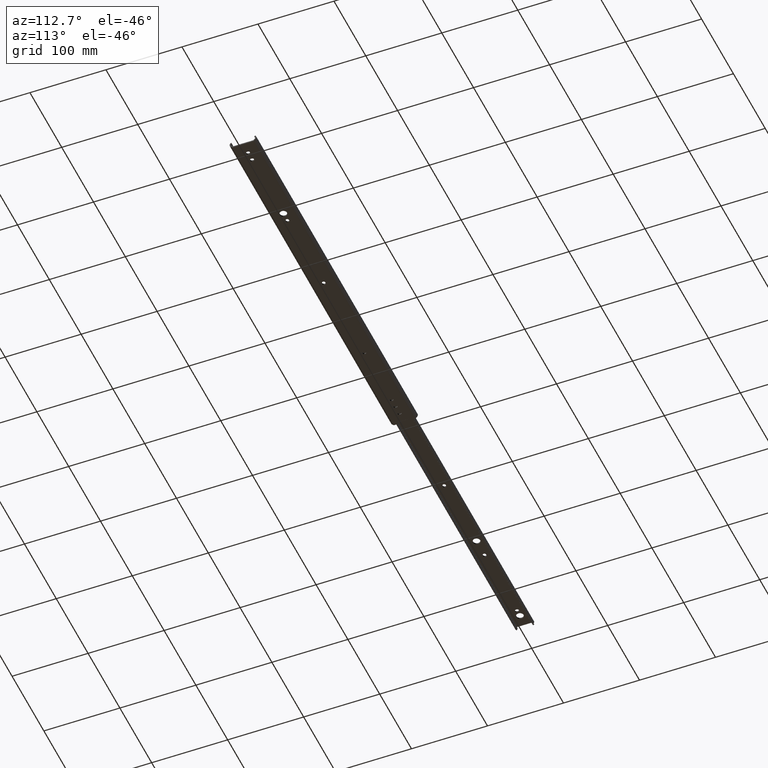
[diagram: clean part render]
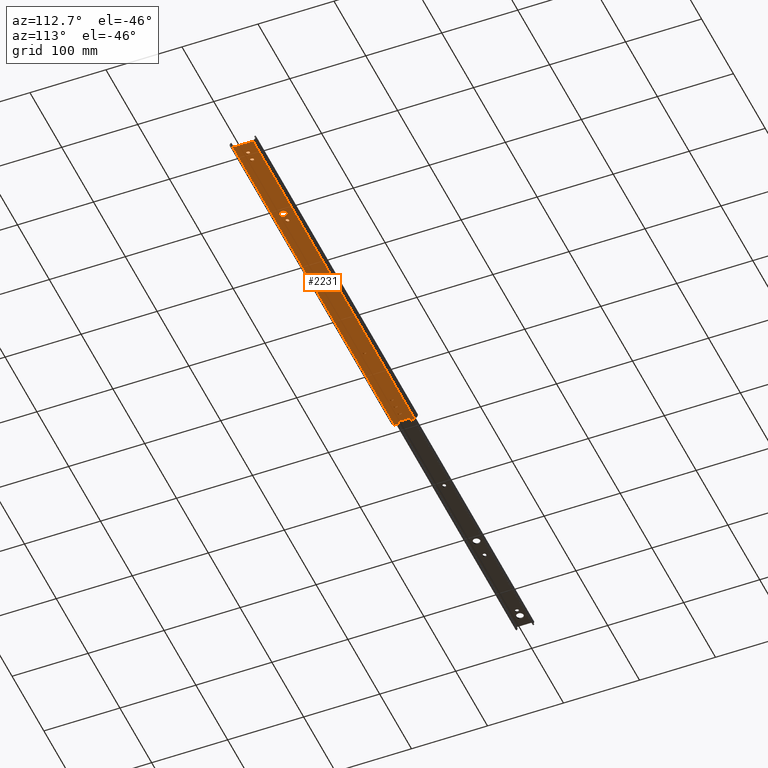
[diagram: same view with one face highlighted and labeled with its STEP entity id]
A machine part, auxiliary view. The second image highlights one B-rep face of the part: STEP entity #2231.
In plain terms, the highlighted planar face has unit normal (0, 0, 1).
Its self-contained STEP definition (entity closure, byte-faithful):
#11 = VECTOR ( 'NONE', #2038, 1000.000000000000000 ) ;
#13 = VERTEX_POINT ( 'NONE', #3204 ) ;
#30 = AXIS2_PLACEMENT_3D ( 'NONE', #2669, #773, #2996 ) ;
#41 = CARTESIAN_POINT ( 'NONE',  ( 254.4000000000000100, 2.249999999999972000, 0.0000000000000000000 ) ) ;
#47 = EDGE_CURVE ( 'NONE', #2586, #2265, #669, .T. ) ;
#50 = ORIENTED_EDGE ( 'NONE', *, *, #3241, .T. ) ;
#54 = CARTESIAN_POINT ( 'NONE',  ( 0.0000000000000000000, 8.000000000000000000, 0.0000000000000000000 ) ) ;
#58 = FACE_BOUND ( 'NONE', #500, .T. ) ;
#66 = CARTESIAN_POINT ( 'NONE',  ( 40.89999999999999100, 4.974404535978835700E-015, 0.0000000000000000000 ) ) ;
#75 = VERTEX_POINT ( 'NONE', #2004 ) ;
#87 = ORIENTED_EDGE ( 'NONE', *, *, #429, .T. ) ;
#94 = VERTEX_POINT ( 'NONE', #3580 ) ;
#98 = EDGE_CURVE ( 'NONE', #13, #3507, #3210, .T. ) ;
#99 = VERTEX_POINT ( 'NONE', #3596 ) ;
#107 = CARTESIAN_POINT ( 'NONE',  ( 256.6499999999999800, 2.047206843145090000E-014, 0.0000000000000000000 ) ) ;
#115 = CIRCLE ( 'NONE', #2567, 2.250000000000001800 ) ;
#131 = CARTESIAN_POINT ( 'NONE',  ( 3.799999999999999800, 8.000000000000000000, 0.0000000000000000000 ) ) ;
#132 = CARTESIAN_POINT ( 'NONE',  ( 1.912740249771085900E-015, -8.000000000000000000, 0.0000000000000000000 ) ) ;
#157 = FACE_BOUND ( 'NONE', #3342, .T. ) ;
#158 = VERTEX_POINT ( 'NONE', #2628 ) ;
#161 = CARTESIAN_POINT ( 'NONE',  ( 127.4000000000000200, 2.249999999999992000, 0.0000000000000000000 ) ) ;
#163 = DIRECTION ( 'NONE',  ( 1.000000000000000000, 0.0000000000000000000, 0.0000000000000000000 ) ) ;
#181 = CARTESIAN_POINT ( 'NONE',  ( 368.6999999999999300, 2.249999999999959100, 0.0000000000000000000 ) ) ;
#185 = AXIS2_PLACEMENT_3D ( 'NONE', #1516, #4047, #559 ) ;
#189 = CARTESIAN_POINT ( 'NONE',  ( 494.3500000000000200, 0.4000000000000859000, -2.168404344971008900E-016 ) ) ;
#207 = EDGE_CURVE ( 'NONE', #645, #158, #1667, .T. ) ;
#212 = DIRECTION ( 'NONE',  ( 0.0000000000000000000, -1.000000000000000000, 0.0000000000000000000 ) ) ;
#214 = ORIENTED_EDGE ( 'NONE', *, *, #1496, .T. ) ;
#223 = CIRCLE ( 'NONE', #1143, 2.250000000000001800 ) ;
#231 = DIRECTION ( 'NONE',  ( 0.0000000000000000000, 0.0000000000000000000, 1.000000000000000000 ) ) ;
#240 = DIRECTION ( 'NONE',  ( 1.000000000000000000, 0.0000000000000000000, 0.0000000000000000000 ) ) ;
#257 = AXIS2_PLACEMENT_3D ( 'NONE', #1548, #976, #3208 ) ;
#264 = CARTESIAN_POINT ( 'NONE',  ( 253.5999999999999900, 2.032511081555321600E-014, 0.0000000000000000000 ) ) ;
#266 = CARTESIAN_POINT ( 'NONE',  ( 508.0000000000000000, -2.250000000000001300, 0.0000000000000000000 ) ) ;
#270 = VERTEX_POINT ( 'NONE', #3938 ) ;
#332 = VERTEX_POINT ( 'NONE', #1407 ) ;
#337 = VERTEX_POINT ( 'NONE', #1657 ) ;
#347 = ORIENTED_EDGE ( 'NONE', *, *, #2122, .T. ) ;
#376 = CARTESIAN_POINT ( 'NONE',  ( 18.15000000000000200, 0.3999999999999964100, -2.168404344971008900E-016 ) ) ;
#377 = AXIS2_PLACEMENT_3D ( 'NONE', #3632, #3882, #3704 ) ;
#379 = CARTESIAN_POINT ( 'NONE',  ( 41.70000000000001700, -2.250000000000001300, 0.0000000000000000000 ) ) ;
#402 = CARTESIAN_POINT ( 'NONE',  ( 127.4000000000000200, 1.579959826756716300E-014, 0.0000000000000000000 ) ) ;
#406 = EDGE_CURVE ( 'NONE', #1620, #3368, #3309, .T. ) ;
#425 = CARTESIAN_POINT ( 'NONE',  ( 30.85000000000000100, 0.4000000000000043000, -2.168404344971008900E-016 ) ) ;
#429 = EDGE_CURVE ( 'NONE', #538, #2925, #663, .T. ) ;
#436 = ORIENTED_EDGE ( 'NONE', *, *, #2900, .T. ) ;
#437 = ORIENTED_EDGE ( 'NONE', *, *, #3359, .T. ) ;
#438 = CARTESIAN_POINT ( 'NONE',  ( 376.2500000000000000, 5.817072295949971800E-016, -2.168404344971008900E-016 ) ) ;
#448 = VECTOR ( 'NONE', #3071, 1000.000000000000000 ) ;
#462 = EDGE_CURVE ( 'NONE', #158, #3217, #4085, .T. ) ;
#473 = EDGE_CURVE ( 'NONE', #3164, #13, #1420, .T. ) ;
#479 = DIRECTION ( 'NONE',  ( 1.000000000000000000, 0.0000000000000000000, -0.0000000000000000000 ) ) ;
#498 = VERTEX_POINT ( 'NONE', #1141 ) ;
#500 = EDGE_LOOP ( 'NONE', ( #1452, #214, #2062, #2671 ) ) ;
#503 = CARTESIAN_POINT ( 'NONE',  ( 41.70000000000000300, 5.072376279910624100E-015, 0.0000000000000000000 ) ) ;
#516 = CARTESIAN_POINT ( 'NONE',  ( 508.0000000000000000, 2.249999999999959100, 0.0000000000000000000 ) ) ;
#532 = DIRECTION ( 'NONE',  ( 0.0000000000000000000, 0.0000000000000000000, 1.000000000000000000 ) ) ;
#538 = VERTEX_POINT ( 'NONE', #1875 ) ;
#544 = DIRECTION ( 'NONE',  ( 1.000000000000000000, 0.0000000000000000000, 0.0000000000000000000 ) ) ;
#558 = LINE ( 'NONE', #3917, #3664 ) ;
#559 = DIRECTION ( 'NONE',  ( 1.000000000000000000, 0.0000000000000000000, 0.0000000000000000000 ) ) ;
#569 = VERTEX_POINT ( 'NONE', #2793 ) ;
#581 = DIRECTION ( 'NONE',  ( 1.000000000000000000, 0.0000000000000000000, 0.0000000000000000000 ) ) ;
#595 = CARTESIAN_POINT ( 'NONE',  ( 479.4000000000000300, 0.4000000000000030800, -2.168404344971008900E-016 ) ) ;
#601 = VECTOR ( 'NONE', #2839, 1000.000000000000000 ) ;
#604 = AXIS2_PLACEMENT_3D ( 'NONE', #1071, #2337, #1399 ) ;
#640 = ORIENTED_EDGE ( 'NONE', *, *, #3559, .T. ) ;
#645 = VERTEX_POINT ( 'NONE', #161 ) ;
#651 = CIRCLE ( 'NONE', #185, 2.249999999999974200 ) ;
#663 = CIRCLE ( 'NONE', #1173, 2.249999999999974200 ) ;
#666 = VECTOR ( 'NONE', #3805, 1000.000000000000000 ) ;
#669 = LINE ( 'NONE', #3855, #3980 ) ;
#670 = VERTEX_POINT ( 'NONE', #181 ) ;
#695 = ORIENTED_EDGE ( 'NONE', *, *, #3129, .T. ) ;
#713 = DIRECTION ( 'NONE',  ( 0.0000000000000000000, 0.0000000000000000000, 1.000000000000000000 ) ) ;
#719 = ORIENTED_EDGE ( 'NONE', *, *, #3314, .T. ) ;
#732 = CARTESIAN_POINT ( 'NONE',  ( 3.800000000000001600, -8.000000000000000000, 0.0000000000000000000 ) ) ;
#739 = CARTESIAN_POINT ( 'NONE',  ( 508.0000000000000000, -2.250000000000007500, 0.0000000000000000000 ) ) ;
#740 = ORIENTED_EDGE ( 'NONE', *, *, #47, .T. ) ;
#753 = ORIENTED_EDGE ( 'NONE', *, *, #3182, .T. ) ;
#758 = EDGE_CURVE ( 'NONE', #3368, #1298, #115, .T. ) ;
#759 = CIRCLE ( 'NONE', #1654, 2.250000000000001800 ) ;
#773 = DIRECTION ( 'NONE',  ( 0.0000000000000000000, 0.0000000000000000000, 1.000000000000000000 ) ) ;
#778 = CARTESIAN_POINT ( 'NONE',  ( 28.60000000000000100, 0.4000000000000039600, -2.168404344971008900E-016 ) ) ;
#779 = DIRECTION ( 'NONE',  ( 0.0000000000000000000, 0.0000000000000000000, 1.000000000000000000 ) ) ;
#784 = DIRECTION ( 'NONE',  ( -1.239088197126290800E-016, 1.000000000000000000, -0.0000000000000000000 ) ) ;
#789 = EDGE_LOOP ( 'NONE', ( #4130, #2326, #2224, #2990 ) ) ;
#804 = ORIENTED_EDGE ( 'NONE', *, *, #2861, .T. ) ;
#810 = ORIENTED_EDGE ( 'NONE', *, *, #2223, .T. ) ;
#815 = FACE_OUTER_BOUND ( 'NONE', #2178, .T. ) ;
#828 = VECTOR ( 'NONE', #2128, 1000.000000000000000 ) ;
#829 = VECTOR ( 'NONE', #3222, 1000.000000000000000 ) ;
#836 = EDGE_LOOP ( 'NONE', ( #2032, #2794 ) ) ;
#841 = AXIS2_PLACEMENT_3D ( 'NONE', #3504, #1593, #3843 ) ;
#851 = DIRECTION ( 'NONE',  ( 0.0000000000000000000, 0.0000000000000000000, 1.000000000000000000 ) ) ;
#855 = DIRECTION ( 'NONE',  ( -0.0000000000000000000, 1.000000000000000000, -0.0000000000000000000 ) ) ;
#866 = LINE ( 'NONE', #2330, #11 ) ;
#905 = AXIS2_PLACEMENT_3D ( 'NONE', #3228, #1585, #1355 ) ;
#906 = EDGE_CURVE ( 'NONE', #2868, #569, #1665, .T. ) ;
#909 = CIRCLE ( 'NONE', #3643, 2.249999999999974200 ) ;
#911 = FACE_BOUND ( 'NONE', #1869, .T. ) ;
#920 = ORIENTED_EDGE ( 'NONE', *, *, #2466, .T. ) ;
#921 = ORIENTED_EDGE ( 'NONE', *, *, #2674, .T. ) ;
#935 = CARTESIAN_POINT ( 'NONE',  ( 0.0000000000000000000, 8.000000000000000000, 0.0000000000000000000 ) ) ;
#940 = VERTEX_POINT ( 'NONE', #3999 ) ;
#965 = EDGE_CURVE ( 'NONE', #940, #337, #3255, .T. ) ;
#976 = DIRECTION ( 'NONE',  ( 0.0000000000000000000, 0.0000000000000000000, 1.000000000000000000 ) ) ;
#995 = DIRECTION ( 'NONE',  ( 0.0000000000000000000, 0.0000000000000000000, 1.000000000000000000 ) ) ;
#1010 = LINE ( 'NONE', #3615, #3459 ) ;
#1028 = EDGE_LOOP ( 'NONE', ( #1681, #3286, #2943, #921 ) ) ;
#1031 = CARTESIAN_POINT ( 'NONE',  ( 477.1500000000000900, 0.4000000000000018500, -2.168404344971008900E-016 ) ) ;
#1034 = AXIS2_PLACEMENT_3D ( 'NONE', #402, #231, #240 ) ;
#1057 = CARTESIAN_POINT ( 'NONE',  ( 15.90000000000000000, 0.3999999999999950800, -2.168404344971008900E-016 ) ) ;
#1066 = VECTOR ( 'NONE', #2199, 1000.000000000000000 ) ;
#1071 = CARTESIAN_POINT ( 'NONE',  ( 381.0000000000000000, 0.0000000000000000000, -2.168404344971008900E-016 ) ) ;
#1077 = LINE ( 'NONE', #3429, #3514 ) ;
#1080 = ORIENTED_EDGE ( 'NONE', *, *, #3870, .T. ) ;
#1104 = CARTESIAN_POINT ( 'NONE',  ( 3.799999999999999400, 7.000000000000000000, 0.0000000000000000000 ) ) ;
#1112 = FACE_BOUND ( 'NONE', #2259, .T. ) ;
#1128 = DIRECTION ( 'NONE',  ( -1.000000000000000000, -0.0000000000000000000, 0.0000000000000000000 ) ) ;
#1140 = CARTESIAN_POINT ( 'NONE',  ( 367.8999999999999800, -2.250000000000040400, 0.0000000000000000000 ) ) ;
#1141 = CARTESIAN_POINT ( 'NONE',  ( 508.0000000000000000, -13.40000000000015700, 0.0000000000000000000 ) ) ;
#1143 = AXIS2_PLACEMENT_3D ( 'NONE', #503, #532, #1503 ) ;
#1145 = EDGE_CURVE ( 'NONE', #1501, #270, #223, .T. ) ;
#1154 = ORIENTED_EDGE ( 'NONE', *, *, #98, .T. ) ;
#1171 = CIRCLE ( 'NONE', #3631, 2.250000000000001800 ) ;
#1173 = AXIS2_PLACEMENT_3D ( 'NONE', #3471, #3382, #2823 ) ;
#1191 = EDGE_CURVE ( 'NONE', #3217, #3748, #3308, .T. ) ;
#1210 = CARTESIAN_POINT ( 'NONE',  ( 40.89999999999999100, -2.250000000000001300, 0.0000000000000000000 ) ) ;
#1212 = VECTOR ( 'NONE', #212, 1000.000000000000000 ) ;
#1245 = CARTESIAN_POINT ( 'NONE',  ( 508.0000000000000000, 13.40000000000015700, 0.0000000000000000000 ) ) ;
#1246 = ORIENTED_EDGE ( 'NONE', *, *, #2508, .T. ) ;
#1251 = AXIS2_PLACEMENT_3D ( 'NONE', #778, #713, #3770 ) ;
#1255 = ORIENTED_EDGE ( 'NONE', *, *, #3993, .T. ) ;
#1262 = VERTEX_POINT ( 'NONE', #1740 ) ;
#1298 = VERTEX_POINT ( 'NONE', #1210 ) ;
#1304 = CIRCLE ( 'NONE', #1034, 2.250000000000001800 ) ;
#1324 = VERTEX_POINT ( 'NONE', #2928 ) ;
#1352 = DIRECTION ( 'NONE',  ( 1.000000000000000000, 0.0000000000000000000, 0.0000000000000000000 ) ) ;
#1355 = DIRECTION ( 'NONE',  ( 1.000000000000000000, 0.0000000000000000000, 0.0000000000000000000 ) ) ;
#1389 = EDGE_CURVE ( 'NONE', #3469, #1908, #3249, .T. ) ;
#1394 = ORIENTED_EDGE ( 'NONE', *, *, #4060, .T. ) ;
#1399 = DIRECTION ( 'NONE',  ( 1.000000000000000000, 0.0000000000000000000, 0.0000000000000000000 ) ) ;
#1407 = CARTESIAN_POINT ( 'NONE',  ( 385.7500000000000600, 0.0000000000000000000, -2.168404344971008900E-016 ) ) ;
#1409 = VECTOR ( 'NONE', #2577, 1000.000000000000000 ) ;
#1412 = VECTOR ( 'NONE', #3475, 1000.000000000000000 ) ;
#1420 = LINE ( 'NONE', #3374, #3876 ) ;
#1442 = CARTESIAN_POINT ( 'NONE',  ( 370.9499999999999900, 4.053093348848866200E-014, 0.0000000000000000000 ) ) ;
#1452 = ORIENTED_EDGE ( 'NONE', *, *, #3760, .T. ) ;
#1457 = ORIENTED_EDGE ( 'NONE', *, *, #2613, .T. ) ;
#1460 = CARTESIAN_POINT ( 'NONE',  ( 15.90000000000000000, -0.4000000000000009700, -2.168404344971008900E-016 ) ) ;
#1467 = CARTESIAN_POINT ( 'NONE',  ( 508.0000000000000000, 2.249999999999998700, 0.0000000000000000000 ) ) ;
#1471 = VECTOR ( 'NONE', #2730, 1000.000000000000000 ) ;
#1479 = VERTEX_POINT ( 'NONE', #41 ) ;
#1493 = VERTEX_POINT ( 'NONE', #1531 ) ;
#1496 = EDGE_CURVE ( 'NONE', #1564, #1891, #2853, .T. ) ;
#1501 = VERTEX_POINT ( 'NONE', #379 ) ;
#1503 = DIRECTION ( 'NONE',  ( 1.000000000000000000, 0.0000000000000000000, 0.0000000000000000000 ) ) ;
#1515 = LINE ( 'NONE', #54, #1409 ) ;
#1516 = CARTESIAN_POINT ( 'NONE',  ( 368.7000000000000500, 4.053093348848866200E-014, 0.0000000000000000000 ) ) ;
#1531 = CARTESIAN_POINT ( 'NONE',  ( 481.6500000000000300, -0.3999999999999918100, -2.168404344971008900E-016 ) ) ;
#1539 = DIRECTION ( 'NONE',  ( 1.000000000000000000, 0.0000000000000000000, 0.0000000000000000000 ) ) ;
#1548 = CARTESIAN_POINT ( 'NONE',  ( 368.7000000000000500, 4.053093348848866200E-014, 0.0000000000000000000 ) ) ;
#1564 = VERTEX_POINT ( 'NONE', #3891 ) ;
#1565 = EDGE_CURVE ( 'NONE', #1639, #1493, #2643, .T. ) ;
#1575 = EDGE_CURVE ( 'NONE', #337, #2868, #1171, .T. ) ;
#1585 = DIRECTION ( 'NONE',  ( 0.0000000000000000000, 0.0000000000000000000, 1.000000000000000000 ) ) ;
#1593 = DIRECTION ( 'NONE',  ( 0.0000000000000000000, 0.0000000000000000000, 1.000000000000000000 ) ) ;
#1597 = AXIS2_PLACEMENT_3D ( 'NONE', #2672, #779, #2999 ) ;
#1598 = VERTEX_POINT ( 'NONE', #2008 ) ;
#1619 = DIRECTION ( 'NONE',  ( 0.0000000000000000000, 0.0000000000000000000, 1.000000000000000000 ) ) ;
#1620 = VERTEX_POINT ( 'NONE', #3352 ) ;
#1639 = VERTEX_POINT ( 'NONE', #1961 ) ;
#1641 = EDGE_CURVE ( 'NONE', #2988, #3495, #2237, .T. ) ;
#1650 = FACE_BOUND ( 'NONE', #836, .T. ) ;
#1654 = AXIS2_PLACEMENT_3D ( 'NONE', #3523, #1619, #3865 ) ;
#1657 = CARTESIAN_POINT ( 'NONE',  ( 18.15000000000000200, 0.3999999999999964100, -2.168404344971008900E-016 ) ) ;
#1665 = LINE ( 'NONE', #4017, #828 ) ;
#1667 = LINE ( 'NONE', #2275, #829 ) ;
#1673 = AXIS2_PLACEMENT_3D ( 'NONE', #1754, #3335, #1352 ) ;
#1677 = DIRECTION ( 'NONE',  ( 1.000000000000000000, -0.0000000000000000000, -0.0000000000000000000 ) ) ;
#1681 = ORIENTED_EDGE ( 'NONE', *, *, #1641, .T. ) ;
#1696 = CARTESIAN_POINT ( 'NONE',  ( 253.5999999999999900, 2.249999999999972000, 0.0000000000000000000 ) ) ;
#1710 = CARTESIAN_POINT ( 'NONE',  ( 127.4000000000000200, -2.250000000000007500, 0.0000000000000000000 ) ) ;
#1713 = VECTOR ( 'NONE', #3775, 1000.000000000000000 ) ;
#1740 = CARTESIAN_POINT ( 'NONE',  ( 494.3500000000000200, 0.4000000000000859000, -2.168404344971008900E-016 ) ) ;
#1746 = FACE_BOUND ( 'NONE', #2215, .T. ) ;
#1754 = CARTESIAN_POINT ( 'NONE',  ( 41.70000000000000300, 5.072376279910624100E-015, 0.0000000000000000000 ) ) ;
#1774 = DIRECTION ( 'NONE',  ( 1.000000000000000000, 0.0000000000000000000, 0.0000000000000000000 ) ) ;
#1778 = EDGE_CURVE ( 'NONE', #2917, #670, #3460, .T. ) ;
#1813 = ORIENTED_EDGE ( 'NONE', *, *, #1191, .T. ) ;
#1818 = LINE ( 'NONE', #4099, #1713 ) ;
#1856 = ORIENTED_EDGE ( 'NONE', *, *, #473, .T. ) ;
#1869 = EDGE_LOOP ( 'NONE', ( #695, #1457, #50, #804 ) ) ;
#1875 = CARTESIAN_POINT ( 'NONE',  ( 367.8999999999999800, 2.249999999999959100, 0.0000000000000000000 ) ) ;
#1876 = EDGE_CURVE ( 'NONE', #332, #3022, #3150, .T. ) ;
#1890 = CARTESIAN_POINT ( 'NONE',  ( 489.8500000000000800, 0.4000000000000852300, -2.168404344971008900E-016 ) ) ;
#1891 = VERTEX_POINT ( 'NONE', #3141 ) ;
#1897 = CARTESIAN_POINT ( 'NONE',  ( 0.0000000000000000000, 0.0000000000000000000, 0.0000000000000000000 ) ) ;
#1902 = LINE ( 'NONE', #1890, #1066 ) ;
#1906 = CIRCLE ( 'NONE', #1597, 2.249999999999974200 ) ;
#1908 = VERTEX_POINT ( 'NONE', #3490 ) ;
#1933 = VERTEX_POINT ( 'NONE', #3121 ) ;
#1961 = CARTESIAN_POINT ( 'NONE',  ( 477.1500000000000900, -0.4000000000000016900, 0.0000000000000000000 ) ) ;
#1965 = ORIENTED_EDGE ( 'NONE', *, *, #207, .T. ) ;
#2001 = AXIS2_PLACEMENT_3D ( 'NONE', #4139, #3176, #2526 ) ;
#2004 = CARTESIAN_POINT ( 'NONE',  ( 489.8500000000000800, -0.4000000000000845100, 0.0000000000000000000 ) ) ;
#2008 = CARTESIAN_POINT ( 'NONE',  ( 494.3500000000000200, -0.3999999999999647700, -2.168404344971008900E-016 ) ) ;
#2022 = PLANE ( 'NONE',  #2296 ) ;
#2031 = DIRECTION ( 'NONE',  ( 1.000000000000000000, 0.0000000000000000000, 0.0000000000000000000 ) ) ;
#2032 = ORIENTED_EDGE ( 'NONE', *, *, #1876, .T. ) ;
#2038 = DIRECTION ( 'NONE',  ( -0.0000000000000000000, 1.000000000000000000, -0.0000000000000000000 ) ) ;
#2040 = ORIENTED_EDGE ( 'NONE', *, *, #406, .T. ) ;
#2043 = CIRCLE ( 'NONE', #1251, 2.250000000000001800 ) ;
#2050 = CIRCLE ( 'NONE', #30, 2.249999999999974200 ) ;
#2056 = EDGE_CURVE ( 'NONE', #99, #2917, #651, .T. ) ;
#2062 = ORIENTED_EDGE ( 'NONE', *, *, #3394, .T. ) ;
#2094 = EDGE_CURVE ( 'NONE', #94, #3469, #3000, .T. ) ;
#2097 = CARTESIAN_POINT ( 'NONE',  ( 253.5999999999999900, -2.250000000000027500, 0.0000000000000000000 ) ) ;
#2100 = VECTOR ( 'NONE', #3132, 1000.000000000000000 ) ;
#2115 = EDGE_CURVE ( 'NONE', #3022, #332, #2232, .T. ) ;
#2122 = EDGE_CURVE ( 'NONE', #2134, #645, #1304, .T. ) ;
#2128 = DIRECTION ( 'NONE',  ( 0.0000000000000000000, -1.000000000000000000, 0.0000000000000000000 ) ) ;
#2134 = VERTEX_POINT ( 'NONE', #3743 ) ;
#2142 = LINE ( 'NONE', #3725, #1212 ) ;
#2143 = VECTOR ( 'NONE', #544, 1000.000000000000000 ) ;
#2146 = VECTOR ( 'NONE', #3253, 1000.000000000000000 ) ;
#2166 = EDGE_CURVE ( 'NONE', #3495, #2471, #2043, .T. ) ;
#2178 = EDGE_LOOP ( 'NONE', ( #2424, #640, #1394, #437, #740, #3086, #3852, #436, #3229, #4010 ) ) ;
#2199 = DIRECTION ( 'NONE',  ( 0.0000000000000000000, -1.000000000000000000, 0.0000000000000000000 ) ) ;
#2215 = EDGE_LOOP ( 'NONE', ( #2040, #3864, #753, #4113, #810 ) ) ;
#2223 = EDGE_CURVE ( 'NONE', #270, #1620, #2694, .T. ) ;
#2224 = ORIENTED_EDGE ( 'NONE', *, *, #906, .T. ) ;
#2231 = ADVANCED_FACE ( 'NONE', ( #1112, #2585, #157, #1746, #911, #58, #3355, #2489, #1650, #815 ), #2022, .F. ) ;
#2232 = CIRCLE ( 'NONE', #604, 4.750000000000032000 ) ;
#2237 = LINE ( 'NONE', #3458, #1412 ) ;
#2259 = EDGE_LOOP ( 'NONE', ( #1080, #87, #1246, #3650, #3703 ) ) ;
#2265 = VERTEX_POINT ( 'NONE', #3806 ) ;
#2275 = CARTESIAN_POINT ( 'NONE',  ( 508.0000000000000000, 2.249999999999992000, 0.0000000000000000000 ) ) ;
#2276 = LINE ( 'NONE', #2512, #601 ) ;
#2296 = AXIS2_PLACEMENT_3D ( 'NONE', #3982, #851, #479 ) ;
#2326 = ORIENTED_EDGE ( 'NONE', *, *, #1575, .T. ) ;
#2330 = CARTESIAN_POINT ( 'NONE',  ( 481.6500000000000300, 0.4000000000000033500, -2.168404344971008900E-016 ) ) ;
#2336 = LINE ( 'NONE', #3023, #3307 ) ;
#2337 = DIRECTION ( 'NONE',  ( 0.0000000000000000000, 0.0000000000000000000, 1.000000000000000000 ) ) ;
#2339 = VECTOR ( 'NONE', #2426, 1000.000000000000000 ) ;
#2424 = ORIENTED_EDGE ( 'NONE', *, *, #1389, .T. ) ;
#2426 = DIRECTION ( 'NONE',  ( 1.000000000000000000, 0.0000000000000000000, -0.0000000000000000000 ) ) ;
#2451 = VECTOR ( 'NONE', #3438, 1000.000000000000000 ) ;
#2459 = DIRECTION ( 'NONE',  ( -1.084202172485504400E-016, 1.000000000000000000, -0.0000000000000000000 ) ) ;
#2466 = EDGE_CURVE ( 'NONE', #1479, #2846, #1077, .T. ) ;
#2471 = VERTEX_POINT ( 'NONE', #4092 ) ;
#2480 = DIRECTION ( 'NONE',  ( 0.0000000000000000000, 0.0000000000000000000, 1.000000000000000000 ) ) ;
#2489 = FACE_BOUND ( 'NONE', #789, .T. ) ;
#2493 = LINE ( 'NONE', #1104, #4027 ) ;
#2508 = EDGE_CURVE ( 'NONE', #2925, #99, #1818, .T. ) ;
#2512 = CARTESIAN_POINT ( 'NONE',  ( 3.799999999999999800, 8.000000000000000000, 0.0000000000000000000 ) ) ;
#2520 = AXIS2_PLACEMENT_3D ( 'NONE', #2902, #995, #3215 ) ;
#2526 = DIRECTION ( 'NONE',  ( 1.000000000000000000, 0.0000000000000000000, 0.0000000000000000000 ) ) ;
#2536 = EDGE_LOOP ( 'NONE', ( #920, #1255, #1856, #1154, #3272 ) ) ;
#2567 = AXIS2_PLACEMENT_3D ( 'NONE', #66, #2624, #2614 ) ;
#2577 = DIRECTION ( 'NONE',  ( -1.000000000000000000, -0.0000000000000000000, -0.0000000000000000000 ) ) ;
#2581 = DIRECTION ( 'NONE',  ( 0.0000000000000000000, 1.000000000000000000, 0.0000000000000000000 ) ) ;
#2585 = FACE_BOUND ( 'NONE', #2536, .T. ) ;
#2586 = VERTEX_POINT ( 'NONE', #935 ) ;
#2597 = EDGE_CURVE ( 'NONE', #1324, #94, #3012, .T. ) ;
#2613 = EDGE_CURVE ( 'NONE', #1262, #3824, #2909, .T. ) ;
#2614 = DIRECTION ( 'NONE',  ( 1.000000000000000000, 0.0000000000000000000, 0.0000000000000000000 ) ) ;
#2624 = DIRECTION ( 'NONE',  ( 0.0000000000000000000, 0.0000000000000000000, 1.000000000000000000 ) ) ;
#2628 = CARTESIAN_POINT ( 'NONE',  ( 126.5999999999999900, 2.249999999999992000, 0.0000000000000000000 ) ) ;
#2643 = CIRCLE ( 'NONE', #3851, 2.249999999999974200 ) ;
#2653 = CARTESIAN_POINT ( 'NONE',  ( 30.85000000000000100, -0.3999999999999919200, -2.168404344971008900E-016 ) ) ;
#2669 = CARTESIAN_POINT ( 'NONE',  ( 254.4000000000000100, 2.047206843145090000E-014, 0.0000000000000000000 ) ) ;
#2671 = ORIENTED_EDGE ( 'NONE', *, *, #1565, .T. ) ;
#2672 = CARTESIAN_POINT ( 'NONE',  ( 492.1000000000000200, -0.3999999999999659400, -2.168404344971008900E-016 ) ) ;
#2674 = EDGE_CURVE ( 'NONE', #1933, #2988, #2708, .T. ) ;
#2694 = CIRCLE ( 'NONE', #1673, 2.250000000000001800 ) ;
#2708 = CIRCLE ( 'NONE', #2520, 2.250000000000001800 ) ;
#2730 = DIRECTION ( 'NONE',  ( -0.0000000000000000000, 1.000000000000000000, -0.0000000000000000000 ) ) ;
#2793 = CARTESIAN_POINT ( 'NONE',  ( 13.64999999999999500, -0.3999999999999946400, 0.0000000000000000000 ) ) ;
#2794 = ORIENTED_EDGE ( 'NONE', *, *, #2115, .T. ) ;
#2822 = VERTEX_POINT ( 'NONE', #3626 ) ;
#2823 = DIRECTION ( 'NONE',  ( 1.000000000000000000, 0.0000000000000000000, 0.0000000000000000000 ) ) ;
#2839 = DIRECTION ( 'NONE',  ( -1.084202172485504400E-016, 1.000000000000000000, -0.0000000000000000000 ) ) ;
#2846 = VERTEX_POINT ( 'NONE', #1696 ) ;
#2853 = CIRCLE ( 'NONE', #3188, 2.249999999999974200 ) ;
#2861 = EDGE_CURVE ( 'NONE', #75, #1598, #1906, .T. ) ;
#2868 = VERTEX_POINT ( 'NONE', #3637 ) ;
#2880 = AXIS2_PLACEMENT_3D ( 'NONE', #1460, #3698, #1774 ) ;
#2884 = CARTESIAN_POINT ( 'NONE',  ( 3.799999999999999800, 8.000000000000000000, 0.0000000000000000000 ) ) ;
#2900 = EDGE_CURVE ( 'NONE', #498, #1324, #2336, .T. ) ;
#2902 = CARTESIAN_POINT ( 'NONE',  ( 28.60000000000000100, -0.3999999999999919200, -2.168404344971008900E-016 ) ) ;
#2909 = CIRCLE ( 'NONE', #841, 2.249999999999974200 ) ;
#2917 = VERTEX_POINT ( 'NONE', #1442 ) ;
#2923 = EDGE_CURVE ( 'NONE', #569, #940, #3201, .T. ) ;
#2925 = VERTEX_POINT ( 'NONE', #1140 ) ;
#2928 = CARTESIAN_POINT ( 'NONE',  ( 0.0000000000000000000, -13.40000000000015700, 0.0000000000000000000 ) ) ;
#2943 = ORIENTED_EDGE ( 'NONE', *, *, #3895, .T. ) ;
#2954 = DIRECTION ( 'NONE',  ( 0.0000000000000000000, 1.000000000000000000, 0.0000000000000000000 ) ) ;
#2956 = LINE ( 'NONE', #266, #2100 ) ;
#2975 = ORIENTED_EDGE ( 'NONE', *, *, #462, .T. ) ;
#2988 = VERTEX_POINT ( 'NONE', #2653 ) ;
#2990 = ORIENTED_EDGE ( 'NONE', *, *, #2923, .T. ) ;
#2996 = DIRECTION ( 'NONE',  ( 1.000000000000000000, 0.0000000000000000000, 0.0000000000000000000 ) ) ;
#2998 = LINE ( 'NONE', #516, #448 ) ;
#2999 = DIRECTION ( 'NONE',  ( 1.000000000000000000, 0.0000000000000000000, 0.0000000000000000000 ) ) ;
#3000 = LINE ( 'NONE', #132, #2143 ) ;
#3012 = LINE ( 'NONE', #1897, #666 ) ;
#3018 = EDGE_CURVE ( 'NONE', #3507, #1479, #2050, .T. ) ;
#3022 = VERTEX_POINT ( 'NONE', #438 ) ;
#3023 = CARTESIAN_POINT ( 'NONE',  ( 508.0000000000000000, -13.40000000000015700, 0.0000000000000000000 ) ) ;
#3071 = DIRECTION ( 'NONE',  ( -1.000000000000000000, -0.0000000000000000000, 0.0000000000000000000 ) ) ;
#3086 = ORIENTED_EDGE ( 'NONE', *, *, #3487, .T. ) ;
#3102 = DIRECTION ( 'NONE',  ( -1.000000000000000000, -0.0000000000000000000, 0.0000000000000000000 ) ) ;
#3121 = CARTESIAN_POINT ( 'NONE',  ( 26.34999999999998400, -0.4000000000000036300, 0.0000000000000000000 ) ) ;
#3129 = EDGE_CURVE ( 'NONE', #1598, #1262, #4031, .T. ) ;
#3132 = DIRECTION ( 'NONE',  ( 1.000000000000000000, 0.0000000000000000000, -0.0000000000000000000 ) ) ;
#3141 = CARTESIAN_POINT ( 'NONE',  ( 477.1500000000000900, 0.4000000000000018500, -2.168404344971008900E-016 ) ) ;
#3150 = CIRCLE ( 'NONE', #905, 4.750000000000032000 ) ;
#3154 = VECTOR ( 'NONE', #2459, 1000.000000000000000 ) ;
#3158 = VECTOR ( 'NONE', #855, 1000.000000000000000 ) ;
#3164 = VERTEX_POINT ( 'NONE', #2097 ) ;
#3176 = DIRECTION ( 'NONE',  ( 0.0000000000000000000, 0.0000000000000000000, 1.000000000000000000 ) ) ;
#3182 = EDGE_CURVE ( 'NONE', #1298, #1501, #2956, .T. ) ;
#3188 = AXIS2_PLACEMENT_3D ( 'NONE', #595, #3847, #1539 ) ;
#3201 = CIRCLE ( 'NONE', #2880, 2.250000000000001800 ) ;
#3204 = CARTESIAN_POINT ( 'NONE',  ( 254.4000000000000100, -2.250000000000027500, 0.0000000000000000000 ) ) ;
#3208 = DIRECTION ( 'NONE',  ( 1.000000000000000000, 0.0000000000000000000, 0.0000000000000000000 ) ) ;
#3210 = CIRCLE ( 'NONE', #377, 2.249999999999974200 ) ;
#3215 = DIRECTION ( 'NONE',  ( 1.000000000000000000, 0.0000000000000000000, 0.0000000000000000000 ) ) ;
#3217 = VERTEX_POINT ( 'NONE', #4135 ) ;
#3222 = DIRECTION ( 'NONE',  ( -1.000000000000000000, -0.0000000000000000000, 0.0000000000000000000 ) ) ;
#3228 = CARTESIAN_POINT ( 'NONE',  ( 381.0000000000000000, 0.0000000000000000000, -2.168404344971008900E-016 ) ) ;
#3229 = ORIENTED_EDGE ( 'NONE', *, *, #2597, .T. ) ;
#3241 = EDGE_CURVE ( 'NONE', #3824, #75, #1902, .T. ) ;
#3249 = LINE ( 'NONE', #2884, #3154 ) ;
#3253 = DIRECTION ( 'NONE',  ( 0.0000000000000000000, -1.000000000000000000, 0.0000000000000000000 ) ) ;
#3255 = LINE ( 'NONE', #376, #3158 ) ;
#3272 = ORIENTED_EDGE ( 'NONE', *, *, #3018, .T. ) ;
#3277 = DIRECTION ( 'NONE',  ( 0.0000000000000000000, 0.0000000000000000000, 1.000000000000000000 ) ) ;
#3286 = ORIENTED_EDGE ( 'NONE', *, *, #2166, .T. ) ;
#3307 = VECTOR ( 'NONE', #1128, 1000.000000000000000 ) ;
#3308 = LINE ( 'NONE', #739, #2339 ) ;
#3309 = LINE ( 'NONE', #1467, #2451 ) ;
#3314 = EDGE_CURVE ( 'NONE', #3748, #2134, #759, .T. ) ;
#3335 = DIRECTION ( 'NONE',  ( 0.0000000000000000000, 0.0000000000000000000, 1.000000000000000000 ) ) ;
#3342 = EDGE_LOOP ( 'NONE', ( #1965, #2975, #1813, #719, #347 ) ) ;
#3352 = CARTESIAN_POINT ( 'NONE',  ( 41.70000000000001700, 2.249999999999998700, 0.0000000000000000000 ) ) ;
#3355 = FACE_BOUND ( 'NONE', #1028, .T. ) ;
#3359 = EDGE_CURVE ( 'NONE', #3739, #2586, #1515, .T. ) ;
#3368 = VERTEX_POINT ( 'NONE', #3892 ) ;
#3374 = CARTESIAN_POINT ( 'NONE',  ( 508.0000000000000000, -2.250000000000027500, 0.0000000000000000000 ) ) ;
#3382 = DIRECTION ( 'NONE',  ( 0.0000000000000000000, 0.0000000000000000000, 1.000000000000000000 ) ) ;
#3394 = EDGE_CURVE ( 'NONE', #1891, #1639, #3769, .T. ) ;
#3419 = EDGE_CURVE ( 'NONE', #498, #4045, #558, .T. ) ;
#3429 = CARTESIAN_POINT ( 'NONE',  ( 508.0000000000000000, 2.249999999999972000, 0.0000000000000000000 ) ) ;
#3438 = DIRECTION ( 'NONE',  ( -1.000000000000000000, -0.0000000000000000000, 0.0000000000000000000 ) ) ;
#3458 = CARTESIAN_POINT ( 'NONE',  ( 30.85000000000000100, 0.4000000000000043000, -2.168404344971008900E-016 ) ) ;
#3459 = VECTOR ( 'NONE', #1677, 1000.000000000000000 ) ;
#3460 = CIRCLE ( 'NONE', #257, 2.249999999999974200 ) ;
#3469 = VERTEX_POINT ( 'NONE', #732 ) ;
#3471 = CARTESIAN_POINT ( 'NONE',  ( 367.8999999999999800, 0.0000000000000000000, 0.0000000000000000000 ) ) ;
#3475 = DIRECTION ( 'NONE',  ( -0.0000000000000000000, 1.000000000000000000, -0.0000000000000000000 ) ) ;
#3487 = EDGE_CURVE ( 'NONE', #2265, #4045, #1010, .T. ) ;
#3490 = CARTESIAN_POINT ( 'NONE',  ( 3.800000000000001600, -6.999999999999999100, 0.0000000000000000000 ) ) ;
#3495 = VERTEX_POINT ( 'NONE', #425 ) ;
#3504 = CARTESIAN_POINT ( 'NONE',  ( 492.1000000000000200, 0.4000000000000856200, -2.168404344971008900E-016 ) ) ;
#3507 = VERTEX_POINT ( 'NONE', #107 ) ;
#3514 = VECTOR ( 'NONE', #3102, 1000.000000000000000 ) ;
#3523 = CARTESIAN_POINT ( 'NONE',  ( 127.4000000000000200, 1.579959826756716300E-014, 0.0000000000000000000 ) ) ;
#3559 = EDGE_CURVE ( 'NONE', #1908, #2822, #2493, .T. ) ;
#3580 = CARTESIAN_POINT ( 'NONE',  ( 0.0000000000000000000, -7.999999999999996400, 0.0000000000000000000 ) ) ;
#3596 = CARTESIAN_POINT ( 'NONE',  ( 368.6999999999999300, -2.250000000000040400, 0.0000000000000000000 ) ) ;
#3615 = CARTESIAN_POINT ( 'NONE',  ( 508.0000000000000000, 13.40000000000015700, 0.0000000000000000000 ) ) ;
#3626 = CARTESIAN_POINT ( 'NONE',  ( 3.799999999999999800, 7.000000000000000000, -2.168404344971008900E-016 ) ) ;
#3631 = AXIS2_PLACEMENT_3D ( 'NONE', #1057, #4001, #163 ) ;
#3632 = CARTESIAN_POINT ( 'NONE',  ( 254.4000000000000100, 2.047206843145090000E-014, 0.0000000000000000000 ) ) ;
#3637 = CARTESIAN_POINT ( 'NONE',  ( 13.64999999999999900, 0.3999999999999946400, -2.168404344971008900E-016 ) ) ;
#3643 = AXIS2_PLACEMENT_3D ( 'NONE', #264, #2480, #581 ) ;
#3650 = ORIENTED_EDGE ( 'NONE', *, *, #2056, .T. ) ;
#3664 = VECTOR ( 'NONE', #2954, 1000.000000000000000 ) ;
#3698 = DIRECTION ( 'NONE',  ( 0.0000000000000000000, 0.0000000000000000000, 1.000000000000000000 ) ) ;
#3703 = ORIENTED_EDGE ( 'NONE', *, *, #1778, .T. ) ;
#3704 = DIRECTION ( 'NONE',  ( 1.000000000000000000, 0.0000000000000000000, 0.0000000000000000000 ) ) ;
#3725 = CARTESIAN_POINT ( 'NONE',  ( 26.34999999999999800, 0.4000000000000037400, -2.168404344971008900E-016 ) ) ;
#3739 = VERTEX_POINT ( 'NONE', #131 ) ;
#3743 = CARTESIAN_POINT ( 'NONE',  ( 129.6500000000000100, 1.579959826756716300E-014, 0.0000000000000000000 ) ) ;
#3748 = VERTEX_POINT ( 'NONE', #1710 ) ;
#3760 = EDGE_CURVE ( 'NONE', #1493, #1564, #866, .T. ) ;
#3769 = LINE ( 'NONE', #1031, #2146 ) ;
#3770 = DIRECTION ( 'NONE',  ( 1.000000000000000000, 0.0000000000000000000, 0.0000000000000000000 ) ) ;
#3775 = DIRECTION ( 'NONE',  ( 1.000000000000000000, 0.0000000000000000000, -0.0000000000000000000 ) ) ;
#3805 = DIRECTION ( 'NONE',  ( 0.0000000000000000000, 1.000000000000000000, 0.0000000000000000000 ) ) ;
#3806 = CARTESIAN_POINT ( 'NONE',  ( 0.0000000000000000000, 13.40000000000015700, 0.0000000000000000000 ) ) ;
#3810 = DIRECTION ( 'NONE',  ( 1.000000000000000000, 0.0000000000000000000, -0.0000000000000000000 ) ) ;
#3824 = VERTEX_POINT ( 'NONE', #3994 ) ;
#3843 = DIRECTION ( 'NONE',  ( 1.000000000000000000, 0.0000000000000000000, 0.0000000000000000000 ) ) ;
#3847 = DIRECTION ( 'NONE',  ( 0.0000000000000000000, 0.0000000000000000000, 1.000000000000000000 ) ) ;
#3851 = AXIS2_PLACEMENT_3D ( 'NONE', #3989, #3277, #2031 ) ;
#3852 = ORIENTED_EDGE ( 'NONE', *, *, #3419, .F. ) ;
#3855 = CARTESIAN_POINT ( 'NONE',  ( 0.0000000000000000000, 0.0000000000000000000, 0.0000000000000000000 ) ) ;
#3864 = ORIENTED_EDGE ( 'NONE', *, *, #758, .T. ) ;
#3865 = DIRECTION ( 'NONE',  ( 1.000000000000000000, 0.0000000000000000000, 0.0000000000000000000 ) ) ;
#3870 = EDGE_CURVE ( 'NONE', #670, #538, #2998, .T. ) ;
#3876 = VECTOR ( 'NONE', #3810, 1000.000000000000000 ) ;
#3882 = DIRECTION ( 'NONE',  ( 0.0000000000000000000, 0.0000000000000000000, 1.000000000000000000 ) ) ;
#3891 = CARTESIAN_POINT ( 'NONE',  ( 481.6500000000000300, 0.4000000000000033500, -2.168404344971008900E-016 ) ) ;
#3892 = CARTESIAN_POINT ( 'NONE',  ( 40.89999999999999100, 2.249999999999998700, 0.0000000000000000000 ) ) ;
#3895 = EDGE_CURVE ( 'NONE', #2471, #1933, #2142, .T. ) ;
#3917 = CARTESIAN_POINT ( 'NONE',  ( 508.0000000000000000, 0.0000000000000000000, 0.0000000000000000000 ) ) ;
#3938 = CARTESIAN_POINT ( 'NONE',  ( 43.95000000000000300, 5.072376279910624100E-015, 0.0000000000000000000 ) ) ;
#3980 = VECTOR ( 'NONE', #2581, 1000.000000000000000 ) ;
#3982 = CARTESIAN_POINT ( 'NONE',  ( 508.0000000000000000, 0.0000000000000000000, 0.0000000000000000000 ) ) ;
#3989 = CARTESIAN_POINT ( 'NONE',  ( 479.4000000000000300, -0.3999999999999929700, -2.168404344971008900E-016 ) ) ;
#3993 = EDGE_CURVE ( 'NONE', #2846, #3164, #909, .T. ) ;
#3994 = CARTESIAN_POINT ( 'NONE',  ( 489.8500000000000800, 0.4000000000000852300, -2.168404344971008900E-016 ) ) ;
#3999 = CARTESIAN_POINT ( 'NONE',  ( 18.15000000000000200, -0.4000000000000004700, -2.168404344971008900E-016 ) ) ;
#4001 = DIRECTION ( 'NONE',  ( 0.0000000000000000000, 0.0000000000000000000, 1.000000000000000000 ) ) ;
#4010 = ORIENTED_EDGE ( 'NONE', *, *, #2094, .T. ) ;
#4017 = CARTESIAN_POINT ( 'NONE',  ( 13.64999999999999900, 0.3999999999999946400, -2.168404344971008900E-016 ) ) ;
#4027 = VECTOR ( 'NONE', #784, 1000.000000000000000 ) ;
#4031 = LINE ( 'NONE', #189, #1471 ) ;
#4045 = VERTEX_POINT ( 'NONE', #1245 ) ;
#4047 = DIRECTION ( 'NONE',  ( 0.0000000000000000000, 0.0000000000000000000, 1.000000000000000000 ) ) ;
#4060 = EDGE_CURVE ( 'NONE', #2822, #3739, #2276, .T. ) ;
#4085 = CIRCLE ( 'NONE', #2001, 2.250000000000001800 ) ;
#4092 = CARTESIAN_POINT ( 'NONE',  ( 26.34999999999999800, 0.4000000000000037400, -2.168404344971008900E-016 ) ) ;
#4099 = CARTESIAN_POINT ( 'NONE',  ( 508.0000000000000000, -2.250000000000040400, 0.0000000000000000000 ) ) ;
#4113 = ORIENTED_EDGE ( 'NONE', *, *, #1145, .T. ) ;
#4130 = ORIENTED_EDGE ( 'NONE', *, *, #965, .T. ) ;
#4135 = CARTESIAN_POINT ( 'NONE',  ( 126.5999999999999900, -2.250000000000007500, 0.0000000000000000000 ) ) ;
#4139 = CARTESIAN_POINT ( 'NONE',  ( 126.5999999999999900, 1.565264065166947400E-014, 0.0000000000000000000 ) ) ;